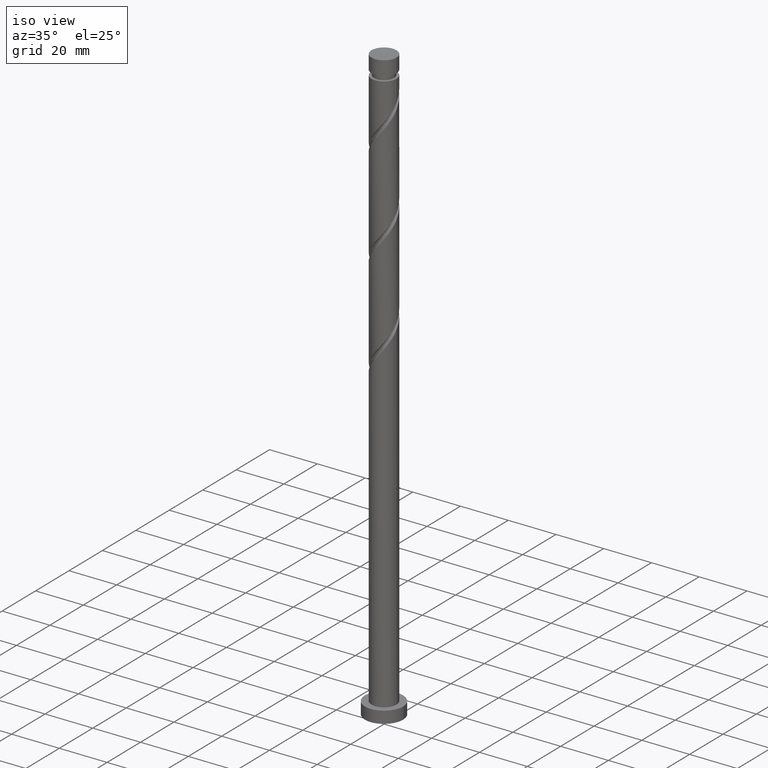
[diagram: clean part render]
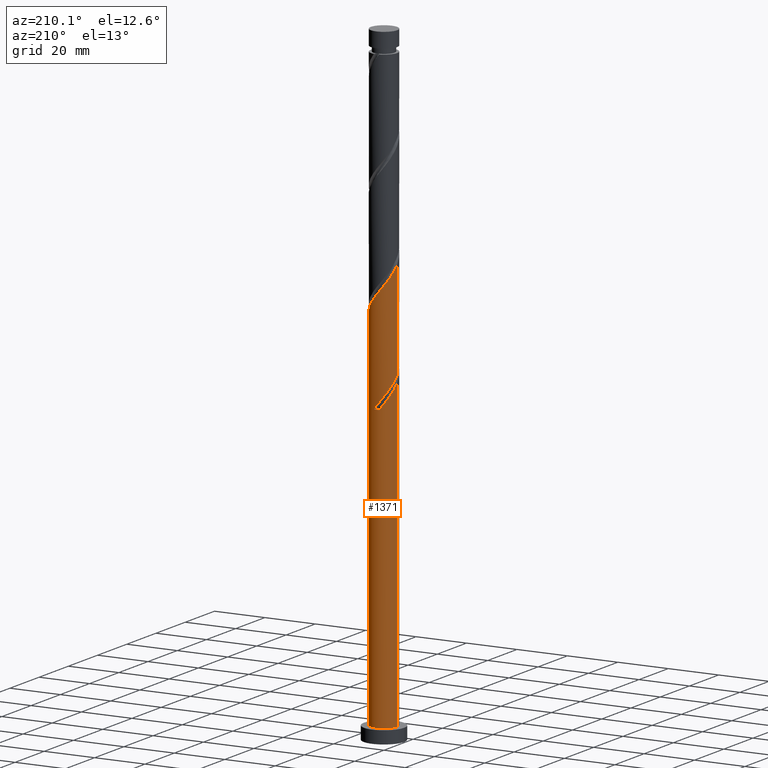
[diagram: tour spotlight — one face highlighted and labeled with its STEP entity id]
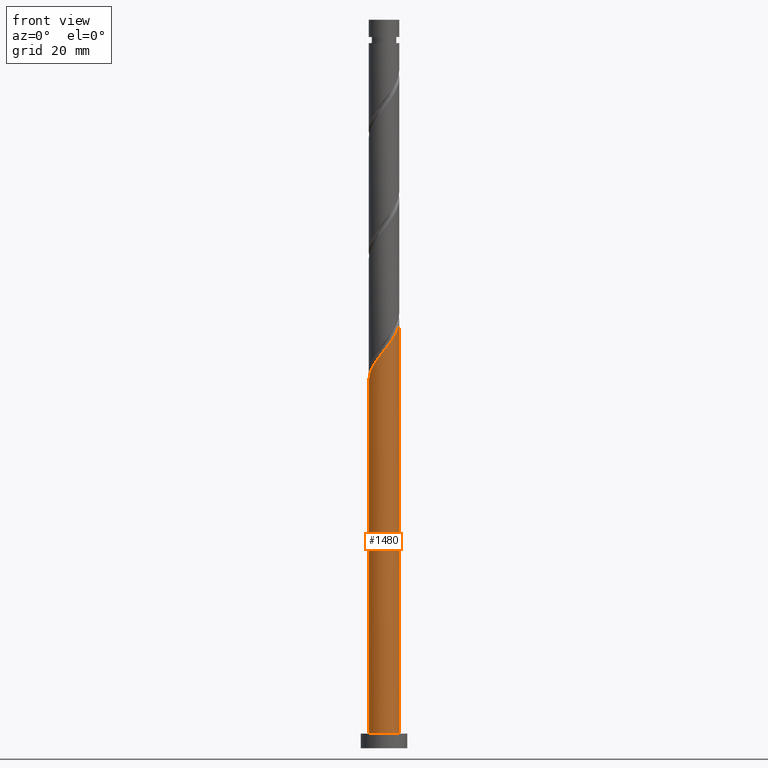
[diagram: tour spotlight — one face highlighted and labeled with its STEP entity id]
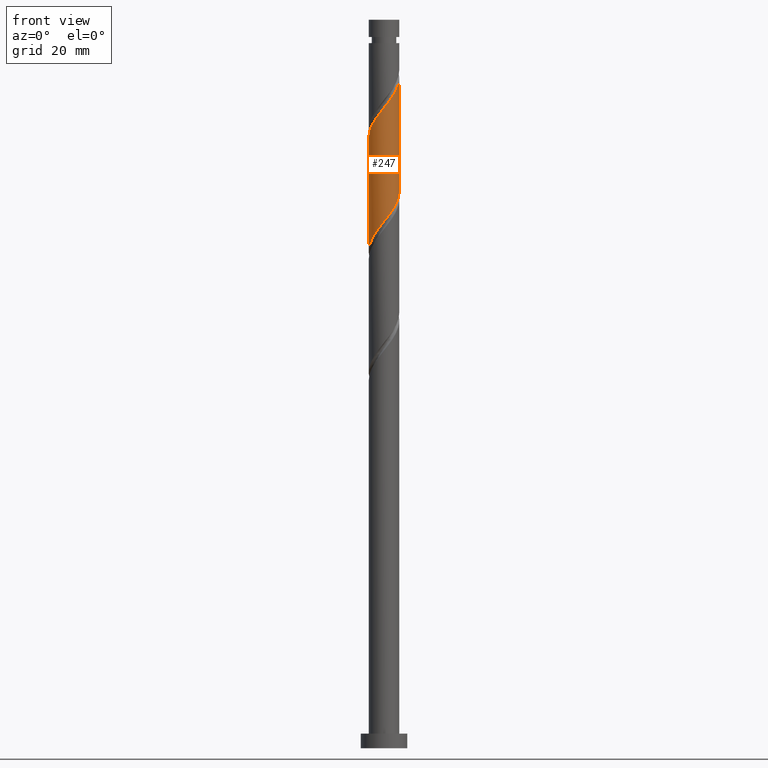
[diagram: tour spotlight — one face highlighted and labeled with its STEP entity id]
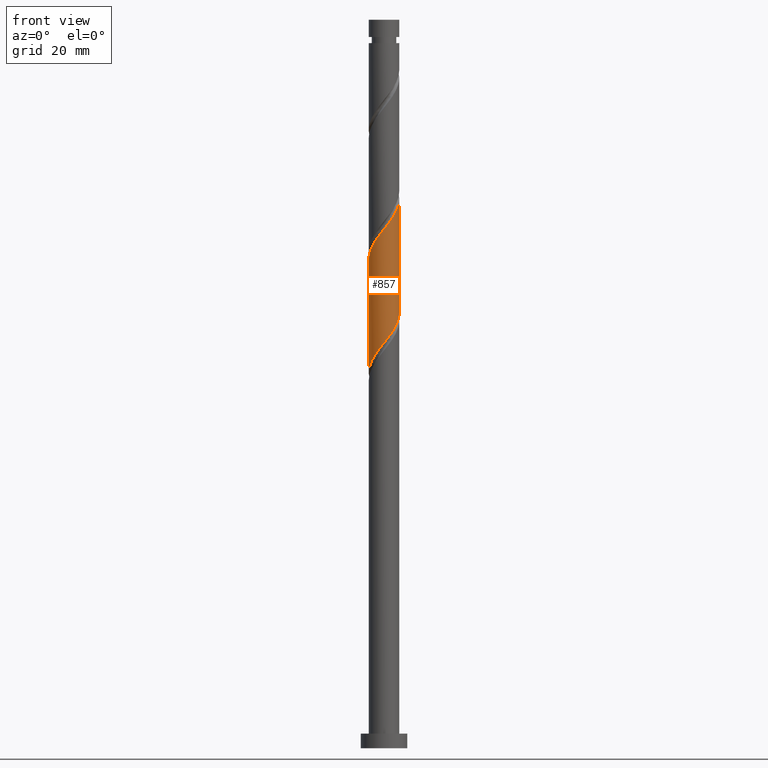
[diagram: tour spotlight — one face highlighted and labeled with its STEP entity id]
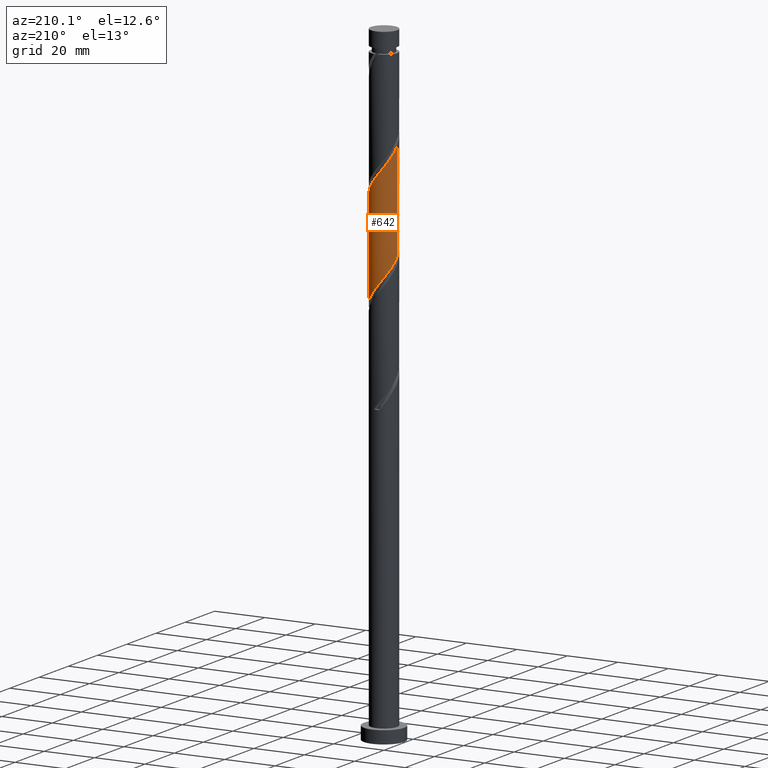
[diagram: tour spotlight — one face highlighted and labeled with its STEP entity id]
A machine part: a face-by-face anatomy tour. The part has 21 B-rep faces; the first image is the clean iso view, then the 5 largest visible faces are spotlighted one at a time (largest first), each with its STEP entity span.

Face 1 — auxiliary view, entity #1371. In plain terms, the highlighted cylindrical surface (edge-blend (fillet) strip) has radius 5.25 mm, axis along (-0, -0, -1).
Definition (entity closure, byte-faithful):
#8 = CARTESIAN_POINT ( 'NONE',  ( -2.629769346130890195, 4.543876449261172290, 121.7915832436031423 ) ) ;
#25 = CARTESIAN_POINT ( 'NONE',  ( -4.577249753498584539, 2.649084152209504772, 164.2595319615518292 ) ) ;
#34 = AXIS2_PLACEMENT_3D ( 'NONE', #1113, #853, #1686 ) ;
#44 = CARTESIAN_POINT ( 'NONE',  ( 1.044736808961954422, 5.145000000000000462, 116.9838909359108214 ) ) ;
#63 = CARTESIAN_POINT ( 'NONE',  ( -2.245657748784898988, 4.745473767214652305, 160.2531217051416377 ) ) ;
#76 = ORIENTED_EDGE ( 'NONE', *, *, #325, .T. ) ;
#96 = EDGE_CURVE ( 'NONE', #1164, #627, #418, .T. ) ;
#112 = VERTEX_POINT ( 'NONE', #1106 ) ;
#121 = CARTESIAN_POINT ( 'NONE',  ( -4.577249753498584539, 2.649084152209504772, 122.5928652948851862 ) ) ;
#138 = CARTESIAN_POINT ( 'NONE',  ( 5.233416263927308520, 0.4169582814397743697, 147.4326088846288201 ) ) ;
#155 = VECTOR ( 'NONE', #444, 1000.000000000000000 ) ;
#167 = CARTESIAN_POINT ( 'NONE',  ( -3.181495836117104847, 4.224564639836851043, 122.5928652948851720 ) ) ;
#253 = CARTESIAN_POINT ( 'NONE',  ( -1.669452912640485120, 5.018145984710550067, 117.7851729871929081 ) ) ;
#281 = ORIENTED_EDGE ( 'NONE', *, *, #1746, .F. ) ;
#325 = EDGE_CURVE ( 'NONE', #1164, #572, #1155, .T. ) ;
#338 = CARTESIAN_POINT ( 'NONE',  ( -0.4200207052834196708, 5.271854015289465067, 157.8492755512955057 ) ) ;
#349 = CARTESIAN_POINT ( 'NONE',  ( -4.440189790485325361, 2.801288029544602320, 124.9967114487313609 ) ) ;
#353 = EDGE_CURVE ( 'NONE', #112, #1292, #427, .T. ) ;
#368 = ORIENTED_EDGE ( 'NONE', *, *, #960, .F. ) ;
#377 = CARTESIAN_POINT ( 'NONE',  ( -4.193762807166895534, 3.158299149419463436, 121.7915832436031280 ) ) ;
#390 = CARTESIAN_POINT ( 'NONE',  ( -1.044736808961952645, 5.145000000000007567, 116.9838909359108214 ) ) ;
#418 =( BOUNDED_CURVE ( )  B_SPLINE_CURVE ( 2, ( #390, #253, #1066, #1388, #498, #1652, #377, #121, #692, #1252, #1485, #1814, #931 ),
 .UNSPECIFIED., .F., .T. ) 
 B_SPLINE_CURVE_WITH_KNOTS ( ( 3, 2, 2, 2, 2, 2, 3 ),
 ( 0.000000000000000000, 0.009615384615384581224, 0.01923076923076927347, 0.02884615384615385122, 0.03846153846153843592, 0.04807692307692312816, 0.05452716259738323717 ),
 .UNSPECIFIED. ) 
 CURVE ( )  GEOMETRIC_REPRESENTATION_ITEM ( )  RATIONAL_B_SPLINE_CURVE ( ( 0.9090909090909273793, 0.9024626128164308092, 0.9090909090909273793, 0.9024626128164308092, 0.9090909090909273793, 0.9024626128164308092, 0.9090909090909273793, 0.9024626128164308092, 0.9090909090909273793, 0.9024626128164308092, 0.9090909090909273793, 0.9046444828382873560, 0.9061636035682820722 ) ) 
 REPRESENTATION_ITEM ( '' )  );
#427 =( BOUNDED_CURVE ( )  B_SPLINE_CURVE ( 2, ( #845, #1272, #138, #710, #1832, #557, #1167, #471, #1041, #769, #616, #452, #1165, #1039, #1184, #338, #1013, #896, #63, #767, #1434, #1582, #628, #25, #587, #1151, #1732, #445, #1576 ),
 .UNSPECIFIED., .F., .T. ) 
 B_SPLINE_CURVE_WITH_KNOTS ( ( 3, 2, 2, 2, 2, 2, 2, 2, 2, 2, 2, 2, 2, 2, 3 ),
 ( 0.1795271625973834106, 0.1826923076923077094, 0.1923076923076922906, 0.2019230769230768718, 0.2115384615384615641, 0.2211538461538461453, 0.2307692307692307265, 0.2403846153846154188, 0.2500000000000000000, 0.2596153846153845812, 0.2692307692307692735, 0.2788461538461538547, 0.2884615384615384359, 0.2980769230769231282, 0.3045271625973834384 ),
 .UNSPECIFIED. ) 
 CURVE ( )  GEOMETRIC_REPRESENTATION_ITEM ( )  RATIONAL_B_SPLINE_CURVE ( ( 0.9061636035682822943, 0.9069090390690709436, 0.9090909090909273793, 0.9024626128164308092, 0.9090909090909273793, 0.9024626128164308092, 0.9090909090909273793, 0.9024626128164308092, 0.9090909090909273793, 0.9024626128164308092, 0.9090909090909273793, 0.9024626128164308092, 0.9090909090909273793, 0.9024626128164308092, 0.9090909090909273793, 0.9024626128164308092, 0.9090909090909273793, 0.9024626128164308092, 0.9090909090909273793, 0.9024626128164308092, 0.9090909090909273793, 0.9024626128164308092, 0.9090909090909273793, 0.9024626128164308092, 0.9090909090909273793, 0.9024626128164308092, 0.9090909090909273793, 0.9046444828382873560, 0.9061636035682822943 ) ) 
 REPRESENTATION_ITEM ( '' )  );
#434 = DIRECTION ( 'NONE',  ( -0.000000000000000000, -0.000000000000000000, -1.000000000000000000 ) ) ;
#444 = DIRECTION ( 'NONE',  ( -0.000000000000000000, -0.000000000000000000, -1.000000000000000000 ) ) ;
#445 = CARTESIAN_POINT ( 'NONE',  ( -5.250000000000007994, 0.4265963023194812576, 167.1996016560039777 ) ) ;
#452 = CARTESIAN_POINT ( 'NONE',  ( 2.078042856144680428, 4.863188258685498866, 154.6441473461672445 ) ) ;
#471 = CARTESIAN_POINT ( 'NONE',  ( 4.100051842361249754, 3.340424679788565054, 151.4390191410390401 ) ) ;
#492 = CARTESIAN_POINT ( 'NONE',  ( 0.4200207052834228350, 5.271854015289456186, 117.7851729871928512 ) ) ;
#498 = CARTESIAN_POINT ( 'NONE',  ( -3.316069222882260803, 4.070157848174086546, 120.1890191410390258 ) ) ;
#499 = CARTESIAN_POINT ( 'NONE',  ( -4.100051842361242649, 3.340424679788562390, 124.1954293974492600 ) ) ;
#519 = CARTESIAN_POINT ( 'NONE',  ( -4.981558050541674554, 1.657280721267052170, 126.5992755512954631 ) ) ;
#528 = AXIS2_PLACEMENT_3D ( 'NONE', #1689, #1818, #1392 ) ;
#532 = LINE ( 'NONE', #1703, #1757 ) ;
#547 =( BOUNDED_CURVE ( )  B_SPLINE_CURVE ( 2, ( #664, #1627, #673, #1232, #519, #1085, #349, #499, #1068, #167, #8, #731, #606, #593, #1170, #492, #44 ),
 .UNSPECIFIED., .F., .T. ) 
 B_SPLINE_CURVE_WITH_KNOTS ( ( 3, 2, 2, 2, 2, 2, 2, 2, 3 ),
 ( 0.9295271625973833274, 0.9326923076923077094, 0.9423076923076922906, 0.9519230769230768718, 0.9615384615384615641, 0.9711538461538461453, 0.9807692307692307265, 0.9903846153846154188, 1.000000000000000000 ),
 .UNSPECIFIED. ) 
 CURVE ( )  GEOMETRIC_REPRESENTATION_ITEM ( )  RATIONAL_B_SPLINE_CURVE ( ( 0.9061636035682768542, 0.9069090390690655035, 0.9090909090909219392, 0.9024626128164254801, 0.9090909090909219392, 0.9024626128164254801, 0.9090909090909219392, 0.9024626128164254801, 0.9090909090909219392, 0.9024626128164254801, 0.9090909090909219392, 0.9024626128164254801, 0.9090909090909219392, 0.9024626128164254801, 0.9090909090909219392, 0.9024626128164254801, 0.9090909090909219392 ) ) 
 REPRESENTATION_ITEM ( '' )  );
#557 = CARTESIAN_POINT ( 'NONE',  ( 4.780327738609418731, 2.262151379300639586, 149.8364550384749236 ) ) ;
#561 = EDGE_LOOP ( 'NONE', ( #1540, #1705, #1807, #1139, #1660, #76, #281, #368 ) ) ;
#572 = VERTEX_POINT ( 'NONE', #798 ) ;
#580 = EDGE_CURVE ( 'NONE', #1598, #1086, #1191, .T. ) ;
#587 = CARTESIAN_POINT ( 'NONE',  ( -4.827730140806556491, 2.062891584050889904, 165.0608140128338732 ) ) ;
#593 = CARTESIAN_POINT ( 'NONE',  ( -0.8538215787515657240, 5.219181052909404706, 119.3877370897569676 ) ) ;
#606 = CARTESIAN_POINT ( 'NONE',  ( -1.465932217448121300, 5.041184655797447789, 120.1890191410390401 ) ) ;
#616 = CARTESIAN_POINT ( 'NONE',  ( 2.629769346130896857, 4.543876449261175843, 153.8428652948851720 ) ) ;
#627 = VERTEX_POINT ( 'NONE', #723 ) ;
#628 = CARTESIAN_POINT ( 'NONE',  ( -4.193762807166895534, 3.158299149419463436, 163.4582499102698137 ) ) ;
#664 = CARTESIAN_POINT ( 'NONE',  ( -5.249999999999999112, 4.845724084784919671E-15, 128.7284794784693531 ) ) ;
#667 = DIRECTION ( 'NONE',  ( 0.000000000000000000, 0.000000000000000000, 1.000000000000000000 ) ) ;
#673 = CARTESIAN_POINT ( 'NONE',  ( -5.233416263927301415, 0.4169582814397780335, 128.2018396538595653 ) ) ;
#684 = CARTESIAN_POINT ( 'NONE',  ( -5.250000000000007994, -2.931363952524193622E-15, 167.7393023933522898 ) ) ;
#692 = CARTESIAN_POINT ( 'NONE',  ( -4.827730140806556491, 2.062891584050889904, 123.3941473461672160 ) ) ;
#710 = CARTESIAN_POINT ( 'NONE',  ( 5.182788362473945476, 1.052410063233463422, 148.2338909359107788 ) ) ;
#723 = CARTESIAN_POINT ( 'NONE',  ( -5.250000000000007994, -2.931363952524193622E-15, 126.0726357266856184 ) ) ;
#725 = EDGE_CURVE ( 'NONE', #112, #1598, #532, .T. ) ;
#731 = CARTESIAN_POINT ( 'NONE',  ( -2.078042856144675543, 4.863188258685489096, 120.9903011923210556 ) ) ;
#757 = CARTESIAN_POINT ( 'NONE',  ( -5.249999999999999112, 4.845724084784919671E-15, 128.7284794784693531 ) ) ;
#767 = CARTESIAN_POINT ( 'NONE',  ( -2.821862584929314188, 4.472801549718751879, 161.0544037564236817 ) ) ;
#769 = CARTESIAN_POINT ( 'NONE',  ( 3.181495836117114617, 4.224564639836852820, 153.0415832436030996 ) ) ;
#798 = CARTESIAN_POINT ( 'NONE',  ( 1.044736808961954422, 5.145000000000000462, 116.9838909359108214 ) ) ;
#799 = AXIS2_PLACEMENT_3D ( 'NONE', #1363, #667, #1543 ) ;
#845 = CARTESIAN_POINT ( 'NONE',  ( 5.250000000000007994, 2.273302657059578953E-15, 146.9059690600189469 ) ) ;
#853 = DIRECTION ( 'NONE',  ( -1.173900156578885668E-29, -1.982541115402065070E-14, -1.000000000000000000 ) ) ;
#856 = CYLINDRICAL_SURFACE ( 'NONE', #528, 5.250000000000000000 ) ;
#860 = VERTEX_POINT ( 'NONE', #757 ) ;
#896 = CARTESIAN_POINT ( 'NONE',  ( -1.669452912640485120, 5.018145984710550067, 159.4518396538595653 ) ) ;
#931 = CARTESIAN_POINT ( 'NONE',  ( -5.250000000000007994, -2.931363952524193622E-15, 126.0726357266856184 ) ) ;
#960 = EDGE_CURVE ( 'NONE', #1292, #860, #1037, .T. ) ;
#998 = EDGE_CURVE ( 'NONE', #627, #1086, #1010, .T. ) ;
#1010 = LINE ( 'NONE', #1729, #155 ) ;
#1013 = CARTESIAN_POINT ( 'NONE',  ( -1.044736808961952201, 5.145000000000007567, 158.6505576025774928 ) ) ;
#1035 = VECTOR ( 'NONE', #434, 1000.000000000000000 ) ;
#1037 = LINE ( 'NONE', #1466, #1035 ) ;
#1039 = CARTESIAN_POINT ( 'NONE',  ( 0.8538215787515699429, 5.219181052909412699, 156.2467114487313324 ) ) ;
#1041 = CARTESIAN_POINT ( 'NONE',  ( 3.640773839239180631, 3.782494659812710491, 152.2403011923210840 ) ) ;
#1066 = CARTESIAN_POINT ( 'NONE',  ( -2.245657748784898988, 4.745473767214652305, 118.5864550384749379 ) ) ;
#1068 = CARTESIAN_POINT ( 'NONE',  ( -3.640773839239173526, 3.782494659812707383, 123.3941473461672302 ) ) ;
#1085 = CARTESIAN_POINT ( 'NONE',  ( -4.780327738609410737, 2.262151379300639142, 125.7979935000134191 ) ) ;
#1086 = VERTEX_POINT ( 'NONE', #1226 ) ;
#1103 = DIRECTION ( 'NONE',  ( -0.000000000000000000, -0.000000000000000000, -1.000000000000000000 ) ) ;
#1106 = CARTESIAN_POINT ( 'NONE',  ( 5.250000000000007994, 2.273302657059578953E-15, 146.9059690600189469 ) ) ;
#1113 = CARTESIAN_POINT ( 'NONE',  ( 0.000000000000000000, 0.000000000000000000, 116.9838909359109351 ) ) ;
#1139 = ORIENTED_EDGE ( 'NONE', *, *, #998, .F. ) ;
#1151 = CARTESIAN_POINT ( 'NONE',  ( -5.078210528114524891, 1.476699015892274369, 165.8620960641160025 ) ) ;
#1155 = CIRCLE ( 'NONE', #34, 5.250000000000000000 ) ;
#1164 = VERTEX_POINT ( 'NONE', #1205 ) ;
#1165 = CARTESIAN_POINT ( 'NONE',  ( 1.465932217448127517, 5.041184655797452230, 155.4454293974492884 ) ) ;
#1167 = CARTESIAN_POINT ( 'NONE',  ( 4.440189790485334242, 2.801288029544604097, 150.6377370897569108 ) ) ;
#1170 = CARTESIAN_POINT ( 'NONE',  ( -0.2169004367340716943, 5.245517534099430890, 118.5864550384749236 ) ) ;
#1184 = CARTESIAN_POINT ( 'NONE',  ( 0.2169004367340775230, 5.245517534099437107, 157.0479935000133480 ) ) ;
#1191 = CIRCLE ( 'NONE', #799, 5.250000000000000000 ) ;
#1205 = CARTESIAN_POINT ( 'NONE',  ( -1.044736808961952645, 5.145000000000007567, 116.9838909359108214 ) ) ;
#1226 = CARTESIAN_POINT ( 'NONE',  ( -5.250000000000000000, 0.000000000000000000, 5.000000000000000000 ) ) ;
#1232 = CARTESIAN_POINT ( 'NONE',  ( -5.182788362473937482, 1.052410063233463422, 127.4005576025774786 ) ) ;
#1252 = CARTESIAN_POINT ( 'NONE',  ( -5.078210528114524891, 1.476699015892274369, 124.1954293974492742 ) ) ;
#1255 = FACE_OUTER_BOUND ( 'NONE', #561, .T. ) ;
#1272 = CARTESIAN_POINT ( 'NONE',  ( 5.250000000000006217, 0.2088089342680390093, 147.1701399756519208 ) ) ;
#1283 = CARTESIAN_POINT ( 'NONE',  ( 5.250000000000000000, 6.429395695523604153E-16, 5.000000000000000000 ) ) ;
#1292 = VERTEX_POINT ( 'NONE', #684 ) ;
#1363 = CARTESIAN_POINT ( 'NONE',  ( 0.000000000000000000, 0.000000000000000000, 5.000000000000000000 ) ) ;
#1371 = ADVANCED_FACE ( 'NONE', ( #1255 ), #856, .T. ) ;
#1388 = CARTESIAN_POINT ( 'NONE',  ( -2.821862584929314188, 4.472801549718751879, 119.3877370897569534 ) ) ;
#1392 = DIRECTION ( 'NONE',  ( -1.000000000000000000, 0.000000000000000000, 0.000000000000000000 ) ) ;
#1434 = CARTESIAN_POINT ( 'NONE',  ( -3.316069222882260803, 4.070157848174086546, 161.8556858077056688 ) ) ;
#1466 = CARTESIAN_POINT ( 'NONE',  ( -5.250000000000000000, 0.000000000000000000, 250.0000000000000000 ) ) ;
#1485 = CARTESIAN_POINT ( 'NONE',  ( -5.181127346747597784, 0.8475962581230929160, 124.9967114487313324 ) ) ;
#1540 = ORIENTED_EDGE ( 'NONE', *, *, #353, .F. ) ;
#1543 = DIRECTION ( 'NONE',  ( 1.000000000000000000, 0.000000000000000000, 0.000000000000000000 ) ) ;
#1576 = CARTESIAN_POINT ( 'NONE',  ( -5.250000000000007994, -2.931363952524194017E-15, 167.7393023933522613 ) ) ;
#1582 = CARTESIAN_POINT ( 'NONE',  ( -3.810275860835206529, 3.667514146629422545, 162.6569678589877412 ) ) ;
#1598 = VERTEX_POINT ( 'NONE', #1283 ) ;
#1627 = CARTESIAN_POINT ( 'NONE',  ( -5.249999999999998224, 0.2088089342680363447, 128.4643085628364076 ) ) ;
#1652 = CARTESIAN_POINT ( 'NONE',  ( -3.810275860835206529, 3.667514146629422545, 120.9903011923210983 ) ) ;
#1660 = ORIENTED_EDGE ( 'NONE', *, *, #96, .F. ) ;
#1686 = DIRECTION ( 'NONE',  ( 0.000000000000000000, 1.000000000000000000, -2.114710523095536328E-14 ) ) ;
#1689 = CARTESIAN_POINT ( 'NONE',  ( 0.000000000000000000, 0.000000000000000000, 250.0000000000000000 ) ) ;
#1703 = CARTESIAN_POINT ( 'NONE',  ( 5.250000000000000000, 6.429395695523604153E-16, 250.0000000000000000 ) ) ;
#1705 = ORIENTED_EDGE ( 'NONE', *, *, #725, .T. ) ;
#1729 = CARTESIAN_POINT ( 'NONE',  ( -5.250000000000000000, 0.000000000000000000, 250.0000000000000000 ) ) ;
#1732 = CARTESIAN_POINT ( 'NONE',  ( -5.181127346747597784, 0.8475962581230929160, 166.6633781153979896 ) ) ;
#1746 = EDGE_CURVE ( 'NONE', #860, #572, #547, .T. ) ;
#1757 = VECTOR ( 'NONE', #1103, 1000.000000000000000 ) ;
#1807 = ORIENTED_EDGE ( 'NONE', *, *, #580, .T. ) ;
#1814 = CARTESIAN_POINT ( 'NONE',  ( -5.250000000000006217, 0.4265963023194944137, 125.5329349893373063 ) ) ;
#1818 = DIRECTION ( 'NONE',  ( -0.000000000000000000, -0.000000000000000000, -1.000000000000000000 ) ) ;
#1832 = CARTESIAN_POINT ( 'NONE',  ( 4.981558050541681659, 1.657280721267048840, 149.0351729871928512 ) ) ;

Face 2 — front view, entity #1480. In plain terms, the highlighted cylindrical surface (edge-blend (fillet) strip) has radius 5.25 mm, axis along (-0, -0, -1).
Definition (entity closure, byte-faithful):
#38 = EDGE_CURVE ( 'NONE', #1086, #1598, #1245, .T. ) ;
#78 = CARTESIAN_POINT ( 'NONE',  ( -4.440189790485334242, -2.801288029544603653, 129.8044037564236532 ) ) ;
#92 = CARTESIAN_POINT ( 'NONE',  ( -5.250000000000007994, -2.931363952524193622E-15, 126.0726357266856184 ) ) ;
#103 = CARTESIAN_POINT ( 'NONE',  ( -1.465932217448124408, -5.041184655797453118, 134.6120960641159456 ) ) ;
#112 = VERTEX_POINT ( 'NONE', #1106 ) ;
#155 = VECTOR ( 'NONE', #444, 1000.000000000000000 ) ;
#218 = CARTESIAN_POINT ( 'NONE',  ( -3.181495836117112841, -4.224564639836855484, 132.2082499102697852 ) ) ;
#225 = CARTESIAN_POINT ( 'NONE',  ( 4.827730140806556491, -2.062891584050889904, 144.2274806795006157 ) ) ;
#232 = CARTESIAN_POINT ( 'NONE',  ( -0.8538215787515691657, -5.219181052909412699, 135.4133781153979612 ) ) ;
#350 = CARTESIAN_POINT ( 'NONE',  ( -2.078042856144679984, -4.863188258685498866, 133.8108140128339301 ) ) ;
#439 = ORIENTED_EDGE ( 'NONE', *, *, #1071, .F. ) ;
#444 = DIRECTION ( 'NONE',  ( -0.000000000000000000, -0.000000000000000000, -1.000000000000000000 ) ) ;
#475 = CARTESIAN_POINT ( 'NONE',  ( -3.640773839239179299, -3.782494659812710935, 131.4069678589877412 ) ) ;
#490 = CARTESIAN_POINT ( 'NONE',  ( -5.233416263927308520, -0.4169582814397760906, 126.5992755512954631 ) ) ;
#509 = CARTESIAN_POINT ( 'NONE',  ( 2.821862584929312412, -4.472801549718752767, 140.2210704230903389 ) ) ;
#532 = LINE ( 'NONE', #1703, #1757 ) ;
#610 = CYLINDRICAL_SURFACE ( 'NONE', #1364, 5.250000000000000000 ) ;
#627 = VERTEX_POINT ( 'NONE', #723 ) ;
#645 = CARTESIAN_POINT ( 'NONE',  ( 0.000000000000000000, 0.000000000000000000, 5.000000000000000000 ) ) ;
#646 = CARTESIAN_POINT ( 'NONE',  ( 0.4200207052834202814, -5.271854015289463291, 137.0159422179621060 ) ) ;
#665 = CARTESIAN_POINT ( 'NONE',  ( 5.250000000000007994, 2.273302657059578953E-15, 146.9059690600189469 ) ) ;
#686 = AXIS2_PLACEMENT_3D ( 'NONE', #645, #1045, #892 ) ;
#723 = CARTESIAN_POINT ( 'NONE',  ( -5.250000000000007994, -2.931363952524193622E-15, 126.0726357266856184 ) ) ;
#725 = EDGE_CURVE ( 'NONE', #112, #1598, #532, .T. ) ;
#766 = ORIENTED_EDGE ( 'NONE', *, *, #998, .T. ) ;
#782 = CARTESIAN_POINT ( 'NONE',  ( 0.000000000000000000, 0.000000000000000000, 250.0000000000000000 ) ) ;
#784 = CARTESIAN_POINT ( 'NONE',  ( 2.245657748784898100, -4.745473767214652305, 139.4197883718082664 ) ) ;
#791 = CARTESIAN_POINT ( 'NONE',  ( 5.078210528114523115, -1.476699015892277700, 145.0287627307826597 ) ) ;
#797 = CARTESIAN_POINT ( 'NONE',  ( 3.810275860835206085, -3.667514146629422989, 141.8236345256544269 ) ) ;
#892 = DIRECTION ( 'NONE',  ( 1.000000000000000000, 0.000000000000000000, 0.000000000000000000 ) ) ;
#909 = CARTESIAN_POINT ( 'NONE',  ( 5.250000000000007105, -0.4265963023194829229, 146.3662683226706349 ) ) ;
#917 = CARTESIAN_POINT ( 'NONE',  ( -0.2169004367340746087, -5.245517534099437107, 136.2146601666800620 ) ) ;
#981 = ORIENTED_EDGE ( 'NONE', *, *, #725, .F. ) ;
#998 = EDGE_CURVE ( 'NONE', #627, #1086, #1010, .T. ) ;
#1010 = LINE ( 'NONE', #1729, #155 ) ;
#1016 = ORIENTED_EDGE ( 'NONE', *, *, #38, .T. ) ;
#1023 = DIRECTION ( 'NONE',  ( -0.000000000000000000, -0.000000000000000000, -1.000000000000000000 ) ) ;
#1045 = DIRECTION ( 'NONE',  ( 0.000000000000000000, 0.000000000000000000, 1.000000000000000000 ) ) ;
#1047 = CARTESIAN_POINT ( 'NONE',  ( 1.669452912640484010, -5.018145984710550067, 138.6185063205261940 ) ) ;
#1058 = CARTESIAN_POINT ( 'NONE',  ( -4.780327738609417842, -2.262151379300641363, 129.0031217051415808 ) ) ;
#1069 = CARTESIAN_POINT ( 'NONE',  ( -4.981558050541680771, -1.657280721267052392, 128.2018396538595653 ) ) ;
#1071 = EDGE_CURVE ( 'NONE', #627, #112, #1819, .T. ) ;
#1086 = VERTEX_POINT ( 'NONE', #1226 ) ;
#1103 = DIRECTION ( 'NONE',  ( -0.000000000000000000, -0.000000000000000000, -1.000000000000000000 ) ) ;
#1106 = CARTESIAN_POINT ( 'NONE',  ( 5.250000000000007994, 2.273302657059578953E-15, 146.9059690600189469 ) ) ;
#1211 = CARTESIAN_POINT ( 'NONE',  ( -5.250000000000007994, -0.2088089342680286564, 126.3368066423186065 ) ) ;
#1226 = CARTESIAN_POINT ( 'NONE',  ( -5.250000000000000000, 0.000000000000000000, 5.000000000000000000 ) ) ;
#1245 = CIRCLE ( 'NONE', #686, 5.250000000000000000 ) ;
#1283 = CARTESIAN_POINT ( 'NONE',  ( 5.250000000000000000, 6.429395695523604153E-16, 5.000000000000000000 ) ) ;
#1287 = EDGE_LOOP ( 'NONE', ( #981, #439, #766, #1016 ) ) ;
#1346 = CARTESIAN_POINT ( 'NONE',  ( 5.181127346747597784, -0.8475962581230933601, 145.8300447820647037 ) ) ;
#1364 = AXIS2_PLACEMENT_3D ( 'NONE', #782, #1023, #1613 ) ;
#1370 = CARTESIAN_POINT ( 'NONE',  ( -5.182788362473945476, -1.052410063233463866, 127.4005576025775071 ) ) ;
#1472 = CARTESIAN_POINT ( 'NONE',  ( 4.577249753498584539, -2.649084152209506549, 143.4261986282185148 ) ) ;
#1480 = ADVANCED_FACE ( 'NONE', ( #1765 ), #610, .T. ) ;
#1487 = CARTESIAN_POINT ( 'NONE',  ( 1.044736808961953312, -5.145000000000007567, 137.8172242692441500 ) ) ;
#1598 = VERTEX_POINT ( 'NONE', #1283 ) ;
#1613 = DIRECTION ( 'NONE',  ( -1.000000000000000000, 0.000000000000000000, 0.000000000000000000 ) ) ;
#1628 = CARTESIAN_POINT ( 'NONE',  ( -4.100051842361247978, -3.340424679788567275, 130.6056858077056972 ) ) ;
#1703 = CARTESIAN_POINT ( 'NONE',  ( 5.250000000000000000, 6.429395695523604153E-16, 250.0000000000000000 ) ) ;
#1729 = CARTESIAN_POINT ( 'NONE',  ( -5.250000000000000000, 0.000000000000000000, 250.0000000000000000 ) ) ;
#1757 = VECTOR ( 'NONE', #1103, 1000.000000000000000 ) ;
#1765 = FACE_OUTER_BOUND ( 'NONE', #1287, .T. ) ;
#1772 = CARTESIAN_POINT ( 'NONE',  ( 3.316069222882260359, -4.070157848174086546, 141.0223524743723260 ) ) ;
#1777 = CARTESIAN_POINT ( 'NONE',  ( 4.193762807166895534, -3.158299149419465213, 142.6249165769364708 ) ) ;
#1792 = CARTESIAN_POINT ( 'NONE',  ( -2.629769346130896412, -4.543876449261175843, 133.0095319615518292 ) ) ;
#1819 =( BOUNDED_CURVE ( )  B_SPLINE_CURVE ( 2, ( #92, #1211, #490, #1370, #1069, #1058, #78, #1628, #475, #218, #1792, #350, #103, #232, #917, #646, #1487, #1047, #784, #509, #1772, #797, #1777, #1472, #225, #791, #1346, #909, #665 ),
 .UNSPECIFIED., .F., .T. ) 
 B_SPLINE_CURVE_WITH_KNOTS ( ( 3, 2, 2, 2, 2, 2, 2, 2, 2, 2, 2, 2, 2, 2, 3 ),
 ( 0.05452716259738323717, 0.05769230769230770939, 0.06730769230769229061, 0.07692307692307687184, 0.08653846153846156408, 0.09615384615384614531, 0.1057692307692307265, 0.1153846153846154188, 0.1250000000000000000, 0.1346153846153845812, 0.1442307692307692735, 0.1538461538461538547, 0.1634615384615384359, 0.1730769230769231282, 0.1795271625973834106 ),
 .UNSPECIFIED. ) 
 CURVE ( )  GEOMETRIC_REPRESENTATION_ITEM ( )  RATIONAL_B_SPLINE_CURVE ( ( 0.9061636035682820722, 0.9069090390690707215, 0.9090909090909273793, 0.9024626128164308092, 0.9090909090909273793, 0.9024626128164308092, 0.9090909090909273793, 0.9024626128164308092, 0.9090909090909273793, 0.9024626128164308092, 0.9090909090909273793, 0.9024626128164308092, 0.9090909090909273793, 0.9024626128164308092, 0.9090909090909273793, 0.9024626128164308092, 0.9090909090909273793, 0.9024626128164308092, 0.9090909090909273793, 0.9024626128164308092, 0.9090909090909273793, 0.9024626128164308092, 0.9090909090909273793, 0.9024626128164308092, 0.9090909090909273793, 0.9024626128164308092, 0.9090909090909273793, 0.9046444828382873560, 0.9061636035682822943 ) ) 
 REPRESENTATION_ITEM ( '' )  );

Face 3 — front view, entity #247. In plain terms, the highlighted cylindrical surface (edge-blend (fillet) strip) has radius 5.25 mm, axis along (-0, -0, -1).
Definition (entity closure, byte-faithful):
#10 = CARTESIAN_POINT ( 'NONE',  ( 5.250000000000007105, -0.4265963023194884740, 229.6996016560039209 ) ) ;
#41 = CARTESIAN_POINT ( 'NONE',  ( 4.440189790485325361, -2.801288029544602320, 187.4967114487313324 ) ) ;
#43 = EDGE_CURVE ( 'NONE', #1077, #877, #515, .T. ) ;
#110 = CARTESIAN_POINT ( 'NONE',  ( -5.078210528114517786, -1.476699015892271039, 172.2723524743722976 ) ) ;
#115 = CARTESIAN_POINT ( 'NONE',  ( -2.078042856144679984, -4.863188258685498866, 217.1441473461673013 ) ) ;
#126 = CARTESIAN_POINT ( 'NONE',  ( 4.827730140806556491, -2.062891584050889904, 227.5608140128339016 ) ) ;
#145 = CARTESIAN_POINT ( 'NONE',  ( -5.182788362473945476, -1.052410063233463866, 210.7338909359108072 ) ) ;
#152 = AXIS2_PLACEMENT_3D ( 'NONE', #1125, #419, #1571 ) ;
#154 = CARTESIAN_POINT ( 'NONE',  ( 5.181127346747597784, -0.8475962581230933601, 229.1633781153979612 ) ) ;
#206 = CARTESIAN_POINT ( 'NONE',  ( 2.629769346130890195, -4.543876449261172290, 184.2915832436031565 ) ) ;
#215 = VERTEX_POINT ( 'NONE', #985 ) ;
#224 = CARTESIAN_POINT ( 'NONE',  ( -3.316069222882257250, -4.070157848174082105, 176.2787627307826597 ) ) ;
#238 = LINE ( 'NONE', #1611, #1124 ) ;
#247 = ADVANCED_FACE ( 'NONE', ( #1005 ), #1262, .T. ) ;
#248 = CARTESIAN_POINT ( 'NONE',  ( 4.577249753498584539, -2.649084152209506549, 226.7595319615518861 ) ) ;
#275 = CARTESIAN_POINT ( 'NONE',  ( -5.250000000000007105, -0.2088089342680345684, 209.6701399756519208 ) ) ;
#284 = CARTESIAN_POINT ( 'NONE',  ( 2.821862584929312412, -4.472801549718752767, 223.5544037564235680 ) ) ;
#318 = CARTESIAN_POINT ( 'NONE',  ( 3.640773839239173526, -3.782494659812707383, 185.8941473461672729 ) ) ;
#335 = CARTESIAN_POINT ( 'NONE',  ( 5.182788362473937482, -1.052410063233463866, 189.9005576025774928 ) ) ;
#370 = CARTESIAN_POINT ( 'NONE',  ( 5.250000000000000888, 7.747176160242559442E-15, 191.2284794784694100 ) ) ;
#384 = CARTESIAN_POINT ( 'NONE',  ( -3.181495836117112841, -4.224564639836855484, 215.5415832436030996 ) ) ;
#402 = CARTESIAN_POINT ( 'NONE',  ( -4.981558050541680771, -1.657280721267052392, 211.5351729871928796 ) ) ;
#414 = CARTESIAN_POINT ( 'NONE',  ( 0.4200207052834202814, -5.271854015289463291, 220.3492755512954773 ) ) ;
#419 = DIRECTION ( 'NONE',  ( -0.000000000000000000, -0.000000000000000000, -1.000000000000000000 ) ) ;
#458 = ORIENTED_EDGE ( 'NONE', *, *, #618, .F. ) ;
#466 = CARTESIAN_POINT ( 'NONE',  ( -5.249999999999999112, 4.845724084784919671E-15, 170.3951461451360103 ) ) ;
#481 = CARTESIAN_POINT ( 'NONE',  ( 1.465932217448121078, -5.041184655797447789, 182.6890191410389832 ) ) ;
#500 = LINE ( 'NONE', #1338, #778 ) ;
#506 = CARTESIAN_POINT ( 'NONE',  ( -2.821862584929311968, -4.472801549718744774, 177.0800447820646468 ) ) ;
#515 =( BOUNDED_CURVE ( )  B_SPLINE_CURVE ( 2, ( #1446, #745, #1609, #335, #1312, #1589, #41, #603, #318, #900, #206, #1201, #481, #1231, #1367, #804, #941, #1633, #518, #506, #224, #795, #953, #1217, #1805, #110, #681, #1240, #825 ),
 .UNSPECIFIED., .F., .T. ) 
 B_SPLINE_CURVE_WITH_KNOTS ( ( 3, 2, 2, 2, 2, 2, 2, 2, 2, 2, 2, 2, 2, 2, 3 ),
 ( 0.5545271625973831053, 0.5576923076923077094, 0.5673076923076922906, 0.5769230769230768718, 0.5865384615384615641, 0.5961538461538461453, 0.6057692307692307265, 0.6153846153846154188, 0.6250000000000000000, 0.6346153846153845812, 0.6442307692307692735, 0.6538461538461538547, 0.6634615384615384359, 0.6730769230769231282, 0.6795271625973833274 ),
 .UNSPECIFIED. ) 
 CURVE ( )  GEOMETRIC_REPRESENTATION_ITEM ( )  RATIONAL_B_SPLINE_CURVE ( ( 0.9061636035682767432, 0.9069090390690652814, 0.9090909090909219392, 0.9024626128164254801, 0.9090909090909219392, 0.9024626128164254801, 0.9090909090909219392, 0.9024626128164254801, 0.9090909090909219392, 0.9024626128164254801, 0.9090909090909219392, 0.9024626128164254801, 0.9090909090909219392, 0.9024626128164254801, 0.9090909090909219392, 0.9024626128164254801, 0.9090909090909219392, 0.9024626128164254801, 0.9090909090909219392, 0.9024626128164254801, 0.9090909090909219392, 0.9024626128164254801, 0.9090909090909219392, 0.9024626128164254801, 0.9090909090909219392, 0.9024626128164254801, 0.9090909090909219392, 0.9046444828382820269, 0.9061636035682768542 ) ) 
 REPRESENTATION_ITEM ( '' )  );
#518 = CARTESIAN_POINT ( 'NONE',  ( -2.245657748784898544, -4.745473767214643424, 177.8813268333467761 ) ) ;
#542 = CARTESIAN_POINT ( 'NONE',  ( -4.440189790485334242, -2.801288029544603653, 213.1377370897569108 ) ) ;
#603 = CARTESIAN_POINT ( 'NONE',  ( 4.100051842361240872, -3.340424679788565054, 186.6954293974493169 ) ) ;
#613 =( BOUNDED_CURVE ( )  B_SPLINE_CURVE ( 2, ( #859, #275, #1681, #145, #402, #850, #542, #1526, #1515, #384, #1534, #115, #1421, #990, #830, #414, #1410, #1246, #1555, #284, #1393, #1810, #1820, #248, #126, #715, #154, #10, #1132 ),
 .UNSPECIFIED., .F., .T. ) 
 B_SPLINE_CURVE_WITH_KNOTS ( ( 3, 2, 2, 2, 2, 2, 2, 2, 2, 2, 2, 2, 2, 2, 3 ),
 ( 0.5545271625973833274, 0.5576923076923077094, 0.5673076923076922906, 0.5769230769230768718, 0.5865384615384615641, 0.5961538461538461453, 0.6057692307692308376, 0.6153846153846154188, 0.6250000000000000000, 0.6346153846153845812, 0.6442307692307691624, 0.6538461538461538547, 0.6634615384615384359, 0.6730769230769231282, 0.6795271625973833274 ),
 .UNSPECIFIED. ) 
 CURVE ( )  GEOMETRIC_REPRESENTATION_ITEM ( )  RATIONAL_B_SPLINE_CURVE ( ( 0.9061636035682820722, 0.9069090390690708325, 0.9090909090909273793, 0.9024626128164308092, 0.9090909090909273793, 0.9024626128164308092, 0.9090909090909273793, 0.9024626128164308092, 0.9090909090909273793, 0.9024626128164308092, 0.9090909090909273793, 0.9024626128164308092, 0.9090909090909273793, 0.9024626128164308092, 0.9090909090909273793, 0.9024626128164308092, 0.9090909090909273793, 0.9024626128164308092, 0.9090909090909273793, 0.9024626128164308092, 0.9090909090909273793, 0.9024626128164308092, 0.9090909090909273793, 0.9024626128164308092, 0.9090909090909273793, 0.9024626128164308092, 0.9090909090909273793, 0.9046444828382873560, 0.9061636035682820722 ) ) 
 REPRESENTATION_ITEM ( '' )  );
#615 = VERTEX_POINT ( 'NONE', #1691 ) ;
#618 = EDGE_CURVE ( 'NONE', #215, #615, #613, .T. ) ;
#635 = DIRECTION ( 'NONE',  ( -0.000000000000000000, -0.000000000000000000, -1.000000000000000000 ) ) ;
#681 = CARTESIAN_POINT ( 'NONE',  ( -5.181127346747590678, -0.8475962581230895854, 171.4710704230903104 ) ) ;
#715 = CARTESIAN_POINT ( 'NONE',  ( 5.078210528114523115, -1.476699015892277700, 228.3620960641159741 ) ) ;
#745 = CARTESIAN_POINT ( 'NONE',  ( 5.250000000000000888, -0.2088089342680242433, 190.9643085628363792 ) ) ;
#778 = VECTOR ( 'NONE', #635, 1000.000000000000000 ) ;
#795 = CARTESIAN_POINT ( 'NONE',  ( -3.810275860835201200, -3.667514146629415883, 175.4774806795005588 ) ) ;
#804 = CARTESIAN_POINT ( 'NONE',  ( -0.4200207052834239452, -5.271854015289456186, 180.2851729871928512 ) ) ;
#809 = DIRECTION ( 'NONE',  ( -0.000000000000000000, -0.000000000000000000, -1.000000000000000000 ) ) ;
#825 = CARTESIAN_POINT ( 'NONE',  ( -5.249999999999999112, 4.845724084784919671E-15, 170.3951461451360103 ) ) ;
#830 = CARTESIAN_POINT ( 'NONE',  ( -0.2169004367340746087, -5.245517534099437107, 219.5479935000133480 ) ) ;
#850 = CARTESIAN_POINT ( 'NONE',  ( -4.780327738609417842, -2.262151379300641363, 212.3364550384748952 ) ) ;
#859 = CARTESIAN_POINT ( 'NONE',  ( -5.250000000000007105, 1.974183886393844403E-15, 209.4059690600190038 ) ) ;
#877 = VERTEX_POINT ( 'NONE', #466 ) ;
#900 = CARTESIAN_POINT ( 'NONE',  ( 3.181495836117103515, -4.224564639836851931, 185.0928652948851152 ) ) ;
#941 = CARTESIAN_POINT ( 'NONE',  ( -1.044736808961953534, -5.145000000000001350, 179.4838909359108641 ) ) ;
#953 = CARTESIAN_POINT ( 'NONE',  ( -4.193762807166892870, -3.158299149419456775, 174.6761986282185148 ) ) ;
#985 = CARTESIAN_POINT ( 'NONE',  ( -5.250000000000007105, 1.974183886393844403E-15, 209.4059690600190038 ) ) ;
#990 = CARTESIAN_POINT ( 'NONE',  ( -0.8538215787515691657, -5.219181052909412699, 218.7467114487313609 ) ) ;
#1005 = FACE_OUTER_BOUND ( 'NONE', #1121, .T. ) ;
#1048 = ORIENTED_EDGE ( 'NONE', *, *, #1161, .F. ) ;
#1077 = VERTEX_POINT ( 'NONE', #370 ) ;
#1098 = EDGE_CURVE ( 'NONE', #215, #877, #238, .T. ) ;
#1121 = EDGE_LOOP ( 'NONE', ( #1048, #458, #1429, #1654 ) ) ;
#1124 = VECTOR ( 'NONE', #809, 1000.000000000000000 ) ;
#1125 = CARTESIAN_POINT ( 'NONE',  ( 0.000000000000000000, 0.000000000000000000, 250.0000000000000000 ) ) ;
#1132 = CARTESIAN_POINT ( 'NONE',  ( 5.250000000000007105, -2.602333304791885893E-15, 230.2393023933522329 ) ) ;
#1161 = EDGE_CURVE ( 'NONE', #615, #1077, #500, .T. ) ;
#1201 = CARTESIAN_POINT ( 'NONE',  ( 2.078042856144674655, -4.863188258685489984, 183.4903011923209988 ) ) ;
#1217 = CARTESIAN_POINT ( 'NONE',  ( -4.577249753498582763, -2.649084152209498999, 173.8749165769364993 ) ) ;
#1231 = CARTESIAN_POINT ( 'NONE',  ( 0.8538215787515638366, -5.219181052909403817, 181.8877370897569676 ) ) ;
#1240 = CARTESIAN_POINT ( 'NONE',  ( -5.249999999999998224, -0.4265963023194863646, 170.9348468824843508 ) ) ;
#1246 = CARTESIAN_POINT ( 'NONE',  ( 1.669452912640484010, -5.018145984710550067, 221.9518396538595937 ) ) ;
#1262 = CYLINDRICAL_SURFACE ( 'NONE', #152, 5.250000000000000000 ) ;
#1312 = CARTESIAN_POINT ( 'NONE',  ( 4.981558050541674554, -1.657280721267053947, 189.0992755512954488 ) ) ;
#1338 = CARTESIAN_POINT ( 'NONE',  ( 5.250000000000000000, 6.429395695523604153E-16, 250.0000000000000000 ) ) ;
#1367 = CARTESIAN_POINT ( 'NONE',  ( 0.2169004367340699735, -5.245517534099430890, 181.0864550384749521 ) ) ;
#1393 = CARTESIAN_POINT ( 'NONE',  ( 3.316069222882260359, -4.070157848174086546, 224.3556858077056972 ) ) ;
#1410 = CARTESIAN_POINT ( 'NONE',  ( 1.044736808961953312, -5.145000000000007567, 221.1505576025774644 ) ) ;
#1421 = CARTESIAN_POINT ( 'NONE',  ( -1.465932217448124408, -5.041184655797453118, 217.9454293974492600 ) ) ;
#1429 = ORIENTED_EDGE ( 'NONE', *, *, #1098, .T. ) ;
#1446 = CARTESIAN_POINT ( 'NONE',  ( 5.250000000000000888, 7.747176160242559442E-15, 191.2284794784694100 ) ) ;
#1515 = CARTESIAN_POINT ( 'NONE',  ( -3.640773839239179299, -3.782494659812710935, 214.7403011923210556 ) ) ;
#1526 = CARTESIAN_POINT ( 'NONE',  ( -4.100051842361247978, -3.340424679788567275, 213.9390191410389832 ) ) ;
#1534 = CARTESIAN_POINT ( 'NONE',  ( -2.629769346130896412, -4.543876449261175843, 216.3428652948852005 ) ) ;
#1555 = CARTESIAN_POINT ( 'NONE',  ( 2.245657748784898100, -4.745473767214652305, 222.7531217051416093 ) ) ;
#1571 = DIRECTION ( 'NONE',  ( -1.000000000000000000, 0.000000000000000000, 0.000000000000000000 ) ) ;
#1589 = CARTESIAN_POINT ( 'NONE',  ( 4.780327738609410737, -2.262151379300639142, 188.2979935000133764 ) ) ;
#1609 = CARTESIAN_POINT ( 'NONE',  ( 5.233416263927303191, -0.4169582814397808646, 190.7018396538595084 ) ) ;
#1611 = CARTESIAN_POINT ( 'NONE',  ( -5.250000000000000000, 0.000000000000000000, 250.0000000000000000 ) ) ;
#1633 = CARTESIAN_POINT ( 'NONE',  ( -1.669452912640485343, -5.018145984710542962, 178.6826088846287064 ) ) ;
#1654 = ORIENTED_EDGE ( 'NONE', *, *, #43, .F. ) ;
#1681 = CARTESIAN_POINT ( 'NONE',  ( -5.233416263927308520, -0.4169582814397760906, 209.9326088846287917 ) ) ;
#1691 = CARTESIAN_POINT ( 'NONE',  ( 5.250000000000007105, -2.602333304791885893E-15, 230.2393023933522329 ) ) ;
#1805 = CARTESIAN_POINT ( 'NONE',  ( -4.827730140806548498, -2.062891584050885019, 173.0736345256544269 ) ) ;
#1810 = CARTESIAN_POINT ( 'NONE',  ( 3.810275860835206085, -3.667514146629422989, 225.1569678589877412 ) ) ;
#1820 = CARTESIAN_POINT ( 'NONE',  ( 4.193762807166895534, -3.158299149419465213, 225.9582499102698137 ) ) ;

Face 4 — front view, entity #857. In plain terms, the highlighted cylindrical surface (edge-blend (fillet) strip) has radius 5.25 mm, axis along (-0, -0, -1).
Definition (entity closure, byte-faithful):
#72 = CARTESIAN_POINT ( 'NONE',  ( 5.078210528114523115, -1.476699015892277700, 186.6954293974492884 ) ) ;
#84 = CARTESIAN_POINT ( 'NONE',  ( -3.181495836117112841, -4.224564639836855484, 173.8749165769364424 ) ) ;
#95 = CARTESIAN_POINT ( 'NONE',  ( -5.233416263927308520, -0.4169582814397760906, 168.2659422179621345 ) ) ;
#105 = CARTESIAN_POINT ( 'NONE',  ( -0.8538215787515691657, -5.219181052909412699, 177.0800447820647037 ) ) ;
#107 = CARTESIAN_POINT ( 'NONE',  ( -5.249999999999998224, -0.4265963023194863646, 129.2681802158176936 ) ) ;
#208 = CARTESIAN_POINT ( 'NONE',  ( -1.465932217448124408, -5.041184655797453118, 176.2787627307827165 ) ) ;
#219 = CARTESIAN_POINT ( 'NONE',  ( 2.245657748784898100, -4.745473767214652305, 181.0864550384748952 ) ) ;
#221 = CARTESIAN_POINT ( 'NONE',  ( 3.640773839239173526, -3.782494659812707383, 144.2274806795006157 ) ) ;
#249 = CARTESIAN_POINT ( 'NONE',  ( -1.044736808961953534, -5.145000000000001350, 137.8172242692441785 ) ) ;
#266 = ORIENTED_EDGE ( 'NONE', *, *, #441, .F. ) ;
#320 = DIRECTION ( 'NONE',  ( -0.000000000000000000, -0.000000000000000000, -1.000000000000000000 ) ) ;
#354 = CARTESIAN_POINT ( 'NONE',  ( 4.981558050541674554, -1.657280721267053947, 147.4326088846288201 ) ) ;
#360 =( BOUNDED_CURVE ( )  B_SPLINE_CURVE ( 2, ( #1519, #647, #1081, #502, #354, #363, #374, #679, #221, #1104, #387, #1673, #1250, #1661, #396, #793, #249, #1228, #1786, #812, #948, #1490, #687, #1630, #1508, #1376, #1802, #107, #1237 ),
 .UNSPECIFIED., .F., .T. ) 
 B_SPLINE_CURVE_WITH_KNOTS ( ( 3, 2, 2, 2, 2, 2, 2, 2, 2, 2, 2, 2, 2, 2, 3 ),
 ( 0.8045271625973832164, 0.8076923076923077094, 0.8173076923076922906, 0.8269230769230768718, 0.8365384615384615641, 0.8461538461538461453, 0.8557692307692307265, 0.8653846153846154188, 0.8750000000000000000, 0.8846153846153845812, 0.8942307692307692735, 0.9038461538461538547, 0.9134615384615384359, 0.9230769230769231282, 0.9295271625973833274 ),
 .UNSPECIFIED. ) 
 CURVE ( )  GEOMETRIC_REPRESENTATION_ITEM ( )  RATIONAL_B_SPLINE_CURVE ( ( 0.9061636035682766321, 0.9069090390690652814, 0.9090909090909219392, 0.9024626128164254801, 0.9090909090909219392, 0.9024626128164254801, 0.9090909090909219392, 0.9024626128164254801, 0.9090909090909219392, 0.9024626128164254801, 0.9090909090909219392, 0.9024626128164254801, 0.9090909090909219392, 0.9024626128164254801, 0.9090909090909219392, 0.9024626128164254801, 0.9090909090909219392, 0.9024626128164254801, 0.9090909090909219392, 0.9024626128164254801, 0.9090909090909219392, 0.9024626128164254801, 0.9090909090909219392, 0.9024626128164254801, 0.9090909090909219392, 0.9024626128164254801, 0.9090909090909219392, 0.9046444828382820269, 0.9061636035682768542 ) ) 
 REPRESENTATION_ITEM ( '' )  );
#363 = CARTESIAN_POINT ( 'NONE',  ( 4.780327738609410737, -2.262151379300639142, 146.6313268333466908 ) ) ;
#374 = CARTESIAN_POINT ( 'NONE',  ( 4.440189790485325361, -2.801288029544602320, 145.8300447820646468 ) ) ;
#387 = CARTESIAN_POINT ( 'NONE',  ( 2.629769346130890195, -4.543876449261172290, 142.6249165769364993 ) ) ;
#396 = CARTESIAN_POINT ( 'NONE',  ( 0.2169004367340699735, -5.245517534099430890, 139.4197883718082949 ) ) ;
#434 = DIRECTION ( 'NONE',  ( -0.000000000000000000, -0.000000000000000000, -1.000000000000000000 ) ) ;
#441 = EDGE_CURVE ( 'NONE', #1292, #738, #1268, .T. ) ;
#501 = CARTESIAN_POINT ( 'NONE',  ( 4.827730140806556491, -2.062891584050889904, 185.8941473461672160 ) ) ;
#502 = CARTESIAN_POINT ( 'NONE',  ( 5.182788362473937482, -1.052410063233463866, 148.2338909359108072 ) ) ;
#522 = CARTESIAN_POINT ( 'NONE',  ( 1.044736808961953312, -5.145000000000007567, 179.4838909359108357 ) ) ;
#638 = CARTESIAN_POINT ( 'NONE',  ( 5.250000000000007994, 2.273302657059578953E-15, 188.5726357266855473 ) ) ;
#647 = CARTESIAN_POINT ( 'NONE',  ( 5.250000000000000888, -0.2088089342680315985, 149.2976418961696936 ) ) ;
#654 = CARTESIAN_POINT ( 'NONE',  ( 3.316069222882260359, -4.070157848174086546, 182.6890191410390116 ) ) ;
#678 = CARTESIAN_POINT ( 'NONE',  ( -4.440189790485334242, -2.801288029544603653, 171.4710704230903389 ) ) ;
#679 = CARTESIAN_POINT ( 'NONE',  ( 4.100051842361240872, -3.340424679788565054, 145.0287627307826028 ) ) ;
#684 = CARTESIAN_POINT ( 'NONE',  ( -5.250000000000007994, -2.931363952524193622E-15, 167.7393023933522898 ) ) ;
#687 = CARTESIAN_POINT ( 'NONE',  ( -4.193762807166892870, -3.158299149419456775, 133.0095319615518576 ) ) ;
#708 = ORIENTED_EDGE ( 'NONE', *, *, #960, .T. ) ;
#738 = VERTEX_POINT ( 'NONE', #1669 ) ;
#748 = CYLINDRICAL_SURFACE ( 'NONE', #1309, 5.250000000000000000 ) ;
#757 = CARTESIAN_POINT ( 'NONE',  ( -5.249999999999999112, 4.845724084784919671E-15, 128.7284794784693531 ) ) ;
#780 = CARTESIAN_POINT ( 'NONE',  ( 1.669452912640484010, -5.018145984710550067, 180.2851729871928512 ) ) ;
#785 = CARTESIAN_POINT ( 'NONE',  ( 4.193762807166895534, -3.158299149419465213, 184.2915832436031849 ) ) ;
#793 = CARTESIAN_POINT ( 'NONE',  ( -0.4200207052834239452, -5.271854015289456186, 138.6185063205261372 ) ) ;
#810 = CARTESIAN_POINT ( 'NONE',  ( -5.250000000000007105, -0.2088089342680418681, 168.0034733089852637 ) ) ;
#812 = CARTESIAN_POINT ( 'NONE',  ( -2.821862584929311968, -4.472801549718744774, 135.4133781153979896 ) ) ;
#855 = ORIENTED_EDGE ( 'NONE', *, *, #1680, .F. ) ;
#857 = ADVANCED_FACE ( 'NONE', ( #1717 ), #748, .T. ) ;
#860 = VERTEX_POINT ( 'NONE', #757 ) ;
#902 = EDGE_CURVE ( 'NONE', #738, #1115, #1315, .T. ) ;
#904 = CARTESIAN_POINT ( 'NONE',  ( -2.629769346130896412, -4.543876449261175843, 174.6761986282185148 ) ) ;
#911 = CARTESIAN_POINT ( 'NONE',  ( -5.182788362473945476, -1.052410063233463866, 169.0672242692442069 ) ) ;
#948 = CARTESIAN_POINT ( 'NONE',  ( -3.316069222882257250, -4.070157848174082105, 134.6120960641159456 ) ) ;
#960 = EDGE_CURVE ( 'NONE', #1292, #860, #1037, .T. ) ;
#1001 = ORIENTED_EDGE ( 'NONE', *, *, #902, .F. ) ;
#1035 = VECTOR ( 'NONE', #434, 1000.000000000000000 ) ;
#1037 = LINE ( 'NONE', #1466, #1035 ) ;
#1053 = CARTESIAN_POINT ( 'NONE',  ( -2.078042856144679984, -4.863188258685498866, 175.4774806795006157 ) ) ;
#1060 = CARTESIAN_POINT ( 'NONE',  ( -3.640773839239179299, -3.782494659812710935, 173.0736345256543984 ) ) ;
#1080 = CARTESIAN_POINT ( 'NONE',  ( 4.577249753498584539, -2.649084152209506549, 185.0928652948852005 ) ) ;
#1081 = CARTESIAN_POINT ( 'NONE',  ( 5.233416263927303191, -0.4169582814397808646, 149.0351729871929081 ) ) ;
#1089 = CARTESIAN_POINT ( 'NONE',  ( -4.981558050541680771, -1.657280721267052392, 169.8685063205262225 ) ) ;
#1104 = CARTESIAN_POINT ( 'NONE',  ( 3.181495836117103515, -4.224564639836851931, 143.4261986282185148 ) ) ;
#1115 = VERTEX_POINT ( 'NONE', #1193 ) ;
#1172 = CARTESIAN_POINT ( 'NONE',  ( 5.250000000000000000, 6.429395695523604153E-16, 250.0000000000000000 ) ) ;
#1193 = CARTESIAN_POINT ( 'NONE',  ( 5.250000000000000888, 7.747176160242559442E-15, 149.5618128118027244 ) ) ;
#1220 = CARTESIAN_POINT ( 'NONE',  ( 0.4200207052834202814, -5.271854015289463291, 178.6826088846287632 ) ) ;
#1228 = CARTESIAN_POINT ( 'NONE',  ( -1.669452912640485343, -5.018145984710542962, 137.0159422179620776 ) ) ;
#1237 = CARTESIAN_POINT ( 'NONE',  ( -5.249999999999999112, 4.845724084784919671E-15, 128.7284794784693531 ) ) ;
#1250 = CARTESIAN_POINT ( 'NONE',  ( 1.465932217448121078, -5.041184655797447789, 141.0223524743723260 ) ) ;
#1268 =( BOUNDED_CURVE ( )  B_SPLINE_CURVE ( 2, ( #1374, #810, #95, #911, #1089, #1778, #678, #1658, #1060, #84, #904, #1053, #208, #105, #1800, #1220, #522, #780, #219, #1784, #654, #1629, #785, #1080, #501, #72, #1648, #1347, #638 ),
 .UNSPECIFIED., .F., .T. ) 
 B_SPLINE_CURVE_WITH_KNOTS ( ( 3, 2, 2, 2, 2, 2, 2, 2, 2, 2, 2, 2, 2, 2, 3 ),
 ( 0.3045271625973834384, 0.3076923076923077094, 0.3173076923076922906, 0.3269230769230768718, 0.3365384615384615641, 0.3461538461538461453, 0.3557692307692307265, 0.3653846153846154188, 0.3750000000000000000, 0.3846153846153845812, 0.3942307692307692735, 0.4038461538461538547, 0.4134615384615384359, 0.4230769230769231282, 0.4295271625973832719 ),
 .UNSPECIFIED. ) 
 CURVE ( )  GEOMETRIC_REPRESENTATION_ITEM ( )  RATIONAL_B_SPLINE_CURVE ( ( 0.9061636035682822943, 0.9069090390690708325, 0.9090909090909273793, 0.9024626128164308092, 0.9090909090909273793, 0.9024626128164308092, 0.9090909090909273793, 0.9024626128164308092, 0.9090909090909273793, 0.9024626128164308092, 0.9090909090909273793, 0.9024626128164308092, 0.9090909090909273793, 0.9024626128164308092, 0.9090909090909273793, 0.9024626128164308092, 0.9090909090909273793, 0.9024626128164308092, 0.9090909090909273793, 0.9024626128164308092, 0.9090909090909273793, 0.9024626128164308092, 0.9090909090909273793, 0.9024626128164308092, 0.9090909090909273793, 0.9024626128164308092, 0.9090909090909273793, 0.9046444828382873560, 0.9061636035682820722 ) ) 
 REPRESENTATION_ITEM ( '' )  );
#1292 = VERTEX_POINT ( 'NONE', #684 ) ;
#1309 = AXIS2_PLACEMENT_3D ( 'NONE', #1740, #320, #1753 ) ;
#1315 = LINE ( 'NONE', #1172, #1478 ) ;
#1347 = CARTESIAN_POINT ( 'NONE',  ( 5.250000000000006217, -0.4265963023194920822, 188.0329349893372353 ) ) ;
#1374 = CARTESIAN_POINT ( 'NONE',  ( -5.250000000000007994, -2.931363952524194017E-15, 167.7393023933522613 ) ) ;
#1376 = CARTESIAN_POINT ( 'NONE',  ( -5.078210528114517786, -1.476699015892271039, 130.6056858077056972 ) ) ;
#1466 = CARTESIAN_POINT ( 'NONE',  ( -5.250000000000000000, 0.000000000000000000, 250.0000000000000000 ) ) ;
#1478 = VECTOR ( 'NONE', #1574, 1000.000000000000000 ) ;
#1490 = CARTESIAN_POINT ( 'NONE',  ( -3.810275860835201200, -3.667514146629415883, 133.8108140128339016 ) ) ;
#1508 = CARTESIAN_POINT ( 'NONE',  ( -4.827730140806548498, -2.062891584050885019, 131.4069678589877412 ) ) ;
#1519 = CARTESIAN_POINT ( 'NONE',  ( 5.250000000000000888, 7.747176160242559442E-15, 149.5618128118027244 ) ) ;
#1574 = DIRECTION ( 'NONE',  ( -0.000000000000000000, -0.000000000000000000, -1.000000000000000000 ) ) ;
#1629 = CARTESIAN_POINT ( 'NONE',  ( 3.810275860835206085, -3.667514146629422989, 183.4903011923211125 ) ) ;
#1630 = CARTESIAN_POINT ( 'NONE',  ( -4.577249753498582763, -2.649084152209498999, 132.2082499102698137 ) ) ;
#1648 = CARTESIAN_POINT ( 'NONE',  ( 5.181127346747597784, -0.8475962581230933601, 187.4967114487313040 ) ) ;
#1658 = CARTESIAN_POINT ( 'NONE',  ( -4.100051842361247978, -3.340424679788567275, 172.2723524743723260 ) ) ;
#1661 = CARTESIAN_POINT ( 'NONE',  ( 0.8538215787515638366, -5.219181052909403817, 140.2210704230902820 ) ) ;
#1669 = CARTESIAN_POINT ( 'NONE',  ( 5.250000000000007994, 2.273302657059578953E-15, 188.5726357266855473 ) ) ;
#1673 = CARTESIAN_POINT ( 'NONE',  ( 2.078042856144674655, -4.863188258685489984, 141.8236345256544269 ) ) ;
#1680 = EDGE_CURVE ( 'NONE', #1115, #860, #360, .T. ) ;
#1717 = FACE_OUTER_BOUND ( 'NONE', #1731, .T. ) ;
#1731 = EDGE_LOOP ( 'NONE', ( #1001, #266, #708, #855 ) ) ;
#1740 = CARTESIAN_POINT ( 'NONE',  ( 0.000000000000000000, 0.000000000000000000, 250.0000000000000000 ) ) ;
#1753 = DIRECTION ( 'NONE',  ( -1.000000000000000000, 0.000000000000000000, 0.000000000000000000 ) ) ;
#1778 = CARTESIAN_POINT ( 'NONE',  ( -4.780327738609417842, -2.262151379300641363, 170.6697883718082949 ) ) ;
#1784 = CARTESIAN_POINT ( 'NONE',  ( 2.821862584929312412, -4.472801549718752767, 181.8877370897569961 ) ) ;
#1786 = CARTESIAN_POINT ( 'NONE',  ( -2.245657748784898544, -4.745473767214643424, 136.2146601666800052 ) ) ;
#1800 = CARTESIAN_POINT ( 'NONE',  ( -0.2169004367340746087, -5.245517534099437107, 177.8813268333467192 ) ) ;
#1802 = CARTESIAN_POINT ( 'NONE',  ( -5.181127346747590678, -0.8475962581230895854, 129.8044037564236532 ) ) ;

Face 5 — auxiliary view, entity #642. In plain terms, the highlighted cylindrical surface (edge-blend (fillet) strip) has radius 5.25 mm, axis along (-0, -0, -1).
Definition (entity closure, byte-faithful):
#97 = CARTESIAN_POINT ( 'NONE',  ( -4.577249753498584539, 2.649084152209504772, 205.9261986282185148 ) ) ;
#133 = CARTESIAN_POINT ( 'NONE',  ( 1.044736808961954422, 5.145000000000001350, 158.6505576025775213 ) ) ;
#142 = CARTESIAN_POINT ( 'NONE',  ( -4.981558050541674554, 1.657280721267052170, 168.2659422179621345 ) ) ;
#187 = CARTESIAN_POINT ( 'NONE',  ( 0.8538215787515699429, 5.219181052909412699, 197.9133781153979612 ) ) ;
#191 = EDGE_LOOP ( 'NONE', ( #1695, #416, #773, #1029 ) ) ;
#195 = CARTESIAN_POINT ( 'NONE',  ( -0.4200207052834196708, 5.271854015289465067, 199.5159422179620492 ) ) ;
#204 = CARTESIAN_POINT ( 'NONE',  ( 2.629769346130896857, 4.543876449261175843, 195.5095319615518576 ) ) ;
#215 = VERTEX_POINT ( 'NONE', #985 ) ;
#234 = CARTESIAN_POINT ( 'NONE',  ( -3.316069222882260803, 4.070157848174086546, 203.5223524743723544 ) ) ;
#238 = LINE ( 'NONE', #1611, #1124 ) ;
#239 = CARTESIAN_POINT ( 'NONE',  ( -4.827730140806556491, 2.062891584050889904, 206.7274806795005873 ) ) ;
#245 = CARTESIAN_POINT ( 'NONE',  ( 5.250000000000000888, 7.747176160242559442E-15, 149.5618128118027244 ) ) ;
#273 = CARTESIAN_POINT ( 'NONE',  ( 2.245657748784901653, 4.745473767214643424, 157.0479935000133764 ) ) ;
#324 = CARTESIAN_POINT ( 'NONE',  ( 3.640773839239180631, 3.782494659812710491, 193.9069678589877412 ) ) ;
#331 = CARTESIAN_POINT ( 'NONE',  ( 4.780327738609418731, 2.262151379300639586, 191.5031217051416661 ) ) ;
#382 = CARTESIAN_POINT ( 'NONE',  ( 5.078210528114517786, 1.476699015892268596, 151.4390191410389548 ) ) ;
#411 = CARTESIAN_POINT ( 'NONE',  ( 3.316069222882259471, 4.070157848174079440, 155.4454293974492600 ) ) ;
#416 = ORIENTED_EDGE ( 'NONE', *, *, #902, .T. ) ;
#422 = CARTESIAN_POINT ( 'NONE',  ( -5.182788362473937482, 1.052410063233463422, 169.0672242692441785 ) ) ;
#431 = CARTESIAN_POINT ( 'NONE',  ( 4.981558050541681659, 1.657280721267048840, 190.7018396538595368 ) ) ;
#466 = CARTESIAN_POINT ( 'NONE',  ( -5.249999999999999112, 4.845724084784919671E-15, 170.3951461451360103 ) ) ;
#479 = CARTESIAN_POINT ( 'NONE',  ( 5.233416263927308520, 0.4169582814397743697, 189.0992755512953920 ) ) ;
#514 = CARTESIAN_POINT ( 'NONE',  ( -3.810275860835206529, 3.667514146629422545, 204.3236345256543984 ) ) ;
#631 = CARTESIAN_POINT ( 'NONE',  ( -2.245657748784898988, 4.745473767214652305, 201.9197883718082380 ) ) ;
#642 = ADVANCED_FACE ( 'NONE', ( #1142 ), #1285, .T. ) ;
#668 = CARTESIAN_POINT ( 'NONE',  ( -4.193762807166895534, 3.158299149419463436, 205.1249165769364424 ) ) ;
#676 = CARTESIAN_POINT ( 'NONE',  ( -4.780327738609410737, 2.262151379300639142, 167.4646601666800336 ) ) ;
#705 = CARTESIAN_POINT ( 'NONE',  ( 1.669452912640486231, 5.018145984710542074, 157.8492755512954488 ) ) ;
#712 = CARTESIAN_POINT ( 'NONE',  ( -4.100051842361242649, 3.340424679788562390, 165.8620960641158888 ) ) ;
#738 = VERTEX_POINT ( 'NONE', #1669 ) ;
#752 = CARTESIAN_POINT ( 'NONE',  ( 0.2169004367340775230, 5.245517534099437107, 198.7146601666800052 ) ) ;
#770 = CARTESIAN_POINT ( 'NONE',  ( 1.465932217448127517, 5.041184655797452230, 197.1120960641159456 ) ) ;
#773 = ORIENTED_EDGE ( 'NONE', *, *, #1408, .F. ) ;
#809 = DIRECTION ( 'NONE',  ( -0.000000000000000000, -0.000000000000000000, -1.000000000000000000 ) ) ;
#818 = CARTESIAN_POINT ( 'NONE',  ( 0.4200207052834228350, 5.271854015289456186, 159.4518396538595368 ) ) ;
#877 = VERTEX_POINT ( 'NONE', #466 ) ;
#884 = CARTESIAN_POINT ( 'NONE',  ( 4.440189790485334242, 2.801288029544604097, 192.3044037564236817 ) ) ;
#889 = CARTESIAN_POINT ( 'NONE',  ( -1.669452912640485120, 5.018145984710550067, 201.1185063205262509 ) ) ;
#898 = CARTESIAN_POINT ( 'NONE',  ( 4.100051842361249754, 3.340424679788565054, 193.1056858077056972 ) ) ;
#902 = EDGE_CURVE ( 'NONE', #738, #1115, #1315, .T. ) ;
#919 = CARTESIAN_POINT ( 'NONE',  ( -5.078210528114524891, 1.476699015892274369, 207.5287627307826313 ) ) ;
#945 = CARTESIAN_POINT ( 'NONE',  ( 5.181127346747590678, 0.8475962581230901405, 150.6377370897569676 ) ) ;
#971 = DIRECTION ( 'NONE',  ( -0.000000000000000000, -0.000000000000000000, -1.000000000000000000 ) ) ;
#985 = CARTESIAN_POINT ( 'NONE',  ( -5.250000000000007105, 1.974183886393844403E-15, 209.4059690600190038 ) ) ;
#988 = CARTESIAN_POINT ( 'NONE',  ( -2.078042856144675543, 4.863188258685489096, 162.6569678589877412 ) ) ;
#1029 = ORIENTED_EDGE ( 'NONE', *, *, #1098, .F. ) ;
#1088 = CARTESIAN_POINT ( 'NONE',  ( 4.577249753498583651, 2.649084152209496335, 153.0415832436030712 ) ) ;
#1098 = EDGE_CURVE ( 'NONE', #215, #877, #238, .T. ) ;
#1102 = CARTESIAN_POINT ( 'NONE',  ( -4.440189790485325361, 2.801288029544602320, 166.6633781153979896 ) ) ;
#1115 = VERTEX_POINT ( 'NONE', #1193 ) ;
#1124 = VECTOR ( 'NONE', #809, 1000.000000000000000 ) ;
#1140 = CARTESIAN_POINT ( 'NONE',  ( 5.182788362473945476, 1.052410063233463422, 189.9005576025774928 ) ) ;
#1142 = FACE_OUTER_BOUND ( 'NONE', #191, .T. ) ;
#1172 = CARTESIAN_POINT ( 'NONE',  ( 5.250000000000000000, 6.429395695523604153E-16, 250.0000000000000000 ) ) ;
#1187 = CARTESIAN_POINT ( 'NONE',  ( 5.250000000000007994, 2.273302657059578953E-15, 188.5726357266855473 ) ) ;
#1193 = CARTESIAN_POINT ( 'NONE',  ( 5.250000000000000888, 7.747176160242559442E-15, 149.5618128118027244 ) ) ;
#1197 = CARTESIAN_POINT ( 'NONE',  ( -2.821862584929314188, 4.472801549718751879, 202.7210704230903104 ) ) ;
#1235 = CARTESIAN_POINT ( 'NONE',  ( -0.2169004367340716943, 5.245517534099430890, 160.2531217051415524 ) ) ;
#1243 = CARTESIAN_POINT ( 'NONE',  ( 4.193762807166893758, 3.158299149419456775, 153.8428652948852289 ) ) ;
#1267 = CARTESIAN_POINT ( 'NONE',  ( -2.629769346130890195, 4.543876449261172290, 163.4582499102698421 ) ) ;
#1277 = CARTESIAN_POINT ( 'NONE',  ( 0.000000000000000000, 0.000000000000000000, 250.0000000000000000 ) ) ;
#1285 = CYLINDRICAL_SURFACE ( 'NONE', #1394, 5.250000000000000000 ) ;
#1315 = LINE ( 'NONE', #1172, #1478 ) ;
#1332 = CARTESIAN_POINT ( 'NONE',  ( -1.044736808961952201, 5.145000000000007567, 200.3172242692442353 ) ) ;
#1349 = CARTESIAN_POINT ( 'NONE',  ( -5.250000000000007105, 1.974183886393844403E-15, 209.4059690600190038 ) ) ;
#1381 = CARTESIAN_POINT ( 'NONE',  ( -0.8538215787515657240, 5.219181052909404706, 161.0544037564236248 ) ) ;
#1394 = AXIS2_PLACEMENT_3D ( 'NONE', #1277, #971, #1838 ) ;
#1401 = CARTESIAN_POINT ( 'NONE',  ( -3.640773839239173526, 3.782494659812707383, 165.0608140128338732 ) ) ;
#1406 = CARTESIAN_POINT ( 'NONE',  ( -5.249999999999998224, 0.2088089342680363447, 170.1309752295030364 ) ) ;
#1408 = EDGE_CURVE ( 'NONE', #877, #1115, #1452, .T. ) ;
#1417 = CARTESIAN_POINT ( 'NONE',  ( -5.233416263927301415, 0.4169582814397780335, 169.8685063205262225 ) ) ;
#1452 =( BOUNDED_CURVE ( )  B_SPLINE_CURVE ( 2, ( #1551, #1406, #1417, #422, #142, #676, #1102, #712, #1401, #1525, #1267, #988, #1541, #1381, #1235, #818, #133, #705, #273, #1827, #411, #1797, #1243, #1088, #1657, #382, #945, #1512, #245 ),
 .UNSPECIFIED., .F., .T. ) 
 B_SPLINE_CURVE_WITH_KNOTS ( ( 3, 2, 2, 2, 2, 2, 2, 2, 2, 2, 2, 2, 2, 2, 3 ),
 ( 0.6795271625973833274, 0.6826923076923077094, 0.6923076923076922906, 0.7019230769230768718, 0.7115384615384615641, 0.7211538461538461453, 0.7307692307692307265, 0.7403846153846154188, 0.7500000000000000000, 0.7596153846153845812, 0.7692307692307692735, 0.7788461538461538547, 0.7884615384615384359, 0.7980769230769231282, 0.8045271625973832164 ),
 .UNSPECIFIED. ) 
 CURVE ( )  GEOMETRIC_REPRESENTATION_ITEM ( )  RATIONAL_B_SPLINE_CURVE ( ( 0.9061636035682768542, 0.9069090390690655035, 0.9090909090909219392, 0.9024626128164254801, 0.9090909090909219392, 0.9024626128164254801, 0.9090909090909219392, 0.9024626128164254801, 0.9090909090909219392, 0.9024626128164254801, 0.9090909090909219392, 0.9024626128164254801, 0.9090909090909219392, 0.9024626128164254801, 0.9090909090909219392, 0.9024626128164254801, 0.9090909090909219392, 0.9024626128164254801, 0.9090909090909219392, 0.9024626128164254801, 0.9090909090909219392, 0.9024626128164254801, 0.9090909090909219392, 0.9024626128164254801, 0.9090909090909219392, 0.9024626128164254801, 0.9090909090909219392, 0.9046444828382820269, 0.9061636035682766321 ) ) 
 REPRESENTATION_ITEM ( '' )  );
#1453 = CARTESIAN_POINT ( 'NONE',  ( 3.181495836117114617, 4.224564639836852820, 194.7082499102698421 ) ) ;
#1474 = CARTESIAN_POINT ( 'NONE',  ( 5.250000000000007994, 0.2088089342680299332, 188.8368066423184928 ) ) ;
#1478 = VECTOR ( 'NONE', #1574, 1000.000000000000000 ) ;
#1512 = CARTESIAN_POINT ( 'NONE',  ( 5.249999999999998224, 0.4265963023194925263, 150.1015135491510080 ) ) ;
#1525 = CARTESIAN_POINT ( 'NONE',  ( -3.181495836117104847, 4.224564639836851043, 164.2595319615518292 ) ) ;
#1541 = CARTESIAN_POINT ( 'NONE',  ( -1.465932217448121300, 5.041184655797447789, 161.8556858077056972 ) ) ;
#1551 = CARTESIAN_POINT ( 'NONE',  ( -5.249999999999999112, 4.845724084784919671E-15, 170.3951461451360103 ) ) ;
#1574 = DIRECTION ( 'NONE',  ( -0.000000000000000000, -0.000000000000000000, -1.000000000000000000 ) ) ;
#1611 = CARTESIAN_POINT ( 'NONE',  ( -5.250000000000000000, 0.000000000000000000, 250.0000000000000000 ) ) ;
#1618 = EDGE_CURVE ( 'NONE', #738, #215, #1634, .T. ) ;
#1634 =( BOUNDED_CURVE ( )  B_SPLINE_CURVE ( 2, ( #1187, #1474, #479, #1140, #431, #331, #884, #898, #324, #1453, #204, #1756, #770, #187, #752, #195, #1332, #889, #631, #1197, #234, #514, #668, #97, #239, #919, #1649, #1640, #1349 ),
 .UNSPECIFIED., .F., .T. ) 
 B_SPLINE_CURVE_WITH_KNOTS ( ( 3, 2, 2, 2, 2, 2, 2, 2, 2, 2, 2, 2, 2, 2, 3 ),
 ( 0.4295271625973832719, 0.4326923076923077094, 0.4423076923076922906, 0.4519230769230768718, 0.4615384615384615641, 0.4711538461538461453, 0.4807692307692307265, 0.4903846153846154188, 0.5000000000000000000, 0.5096153846153845812, 0.5192307692307691624, 0.5288461538461538547, 0.5384615384615384359, 0.5480769230769231282, 0.5545271625973833274 ),
 .UNSPECIFIED. ) 
 CURVE ( )  GEOMETRIC_REPRESENTATION_ITEM ( )  RATIONAL_B_SPLINE_CURVE ( ( 0.9061636035682820722, 0.9069090390690707215, 0.9090909090909273793, 0.9024626128164308092, 0.9090909090909273793, 0.9024626128164308092, 0.9090909090909273793, 0.9024626128164308092, 0.9090909090909273793, 0.9024626128164308092, 0.9090909090909273793, 0.9024626128164308092, 0.9090909090909273793, 0.9024626128164308092, 0.9090909090909273793, 0.9024626128164308092, 0.9090909090909273793, 0.9024626128164308092, 0.9090909090909273793, 0.9024626128164308092, 0.9090909090909273793, 0.9024626128164308092, 0.9090909090909273793, 0.9024626128164308092, 0.9090909090909273793, 0.9024626128164308092, 0.9090909090909273793, 0.9046444828382873560, 0.9061636035682820722 ) ) 
 REPRESENTATION_ITEM ( '' )  );
#1640 = CARTESIAN_POINT ( 'NONE',  ( -5.250000000000007105, 0.4265963023194885850, 208.8662683226707202 ) ) ;
#1649 = CARTESIAN_POINT ( 'NONE',  ( -5.181127346747597784, 0.8475962581230929160, 208.3300447820647321 ) ) ;
#1657 = CARTESIAN_POINT ( 'NONE',  ( 4.827730140806549386, 2.062891584050884575, 152.2403011923210840 ) ) ;
#1669 = CARTESIAN_POINT ( 'NONE',  ( 5.250000000000007994, 2.273302657059578953E-15, 188.5726357266855473 ) ) ;
#1695 = ORIENTED_EDGE ( 'NONE', *, *, #1618, .F. ) ;
#1756 = CARTESIAN_POINT ( 'NONE',  ( 2.078042856144680428, 4.863188258685498866, 196.3108140128339301 ) ) ;
#1797 = CARTESIAN_POINT ( 'NONE',  ( 3.810275860835201645, 3.667514146629415883, 154.6441473461672160 ) ) ;
#1827 = CARTESIAN_POINT ( 'NONE',  ( 2.821862584929312856, 4.472801549718744774, 156.2467114487312756 ) ) ;
#1838 = DIRECTION ( 'NONE',  ( -1.000000000000000000, 0.000000000000000000, 0.000000000000000000 ) ) ;